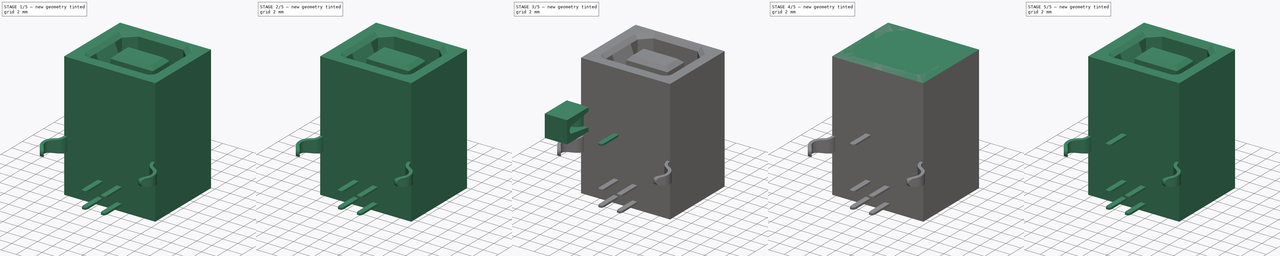
[diagram: build sequence overview — one tinted view per stage of 5, left to right]
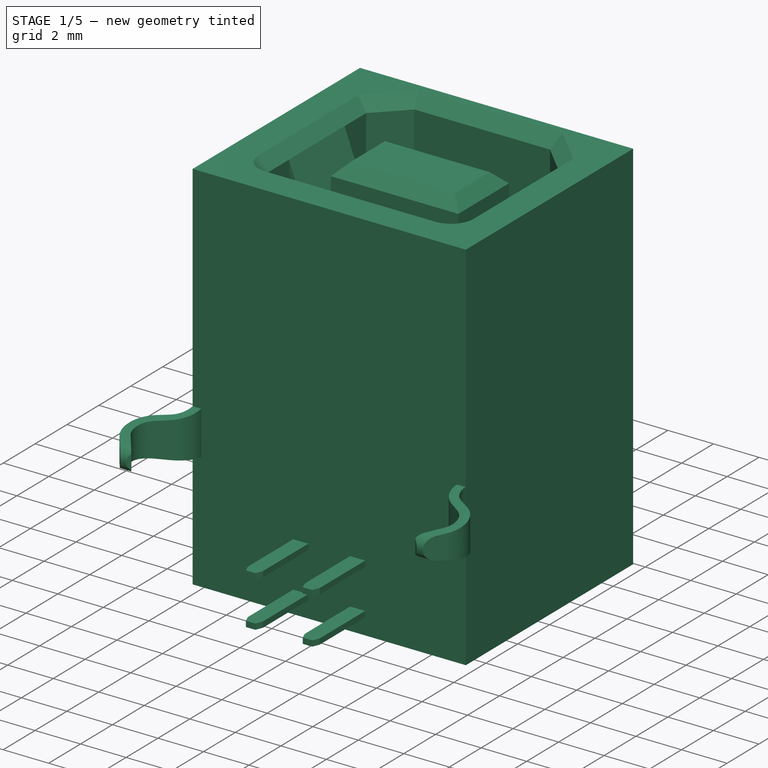
[diagram: stage 1 of 5 — iso view after this stage's code; geometry added in this stage tinted green]
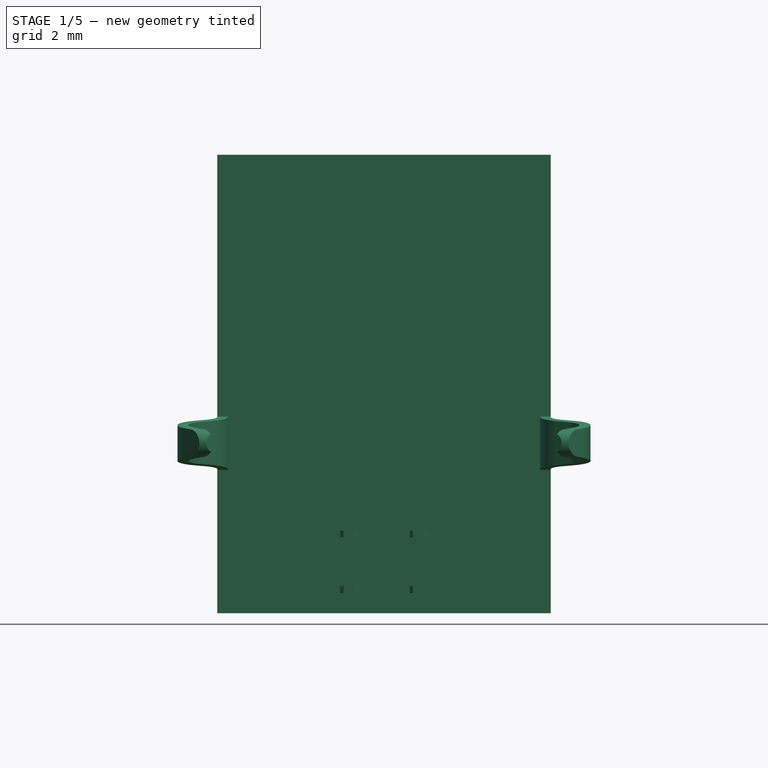
[diagram: stage 1 of 5 — front view after this stage's code; geometry added in this stage tinted green]
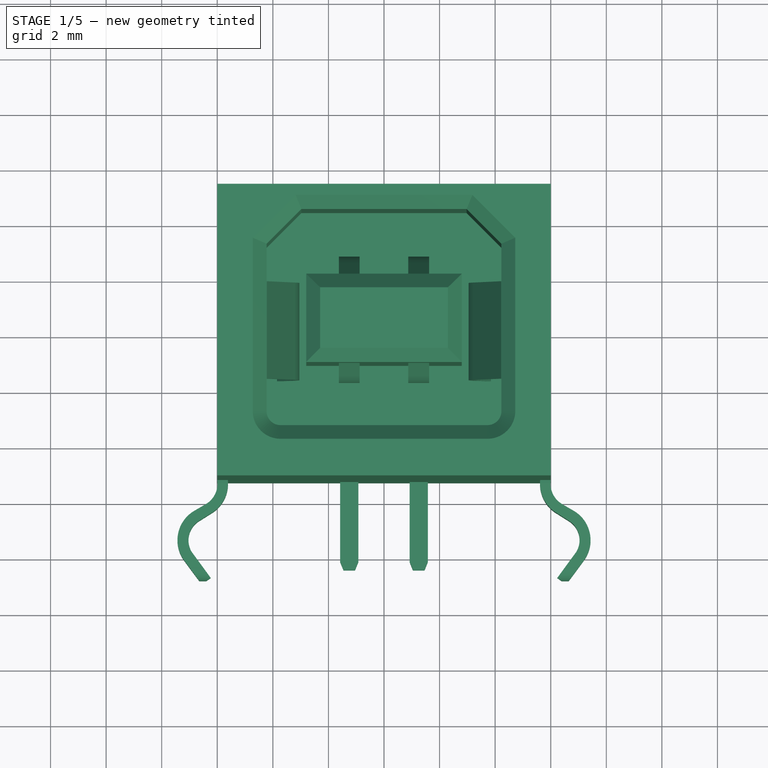
[diagram: stage 1 of 5 — top view after this stage's code; geometry added in this stage tinted green]
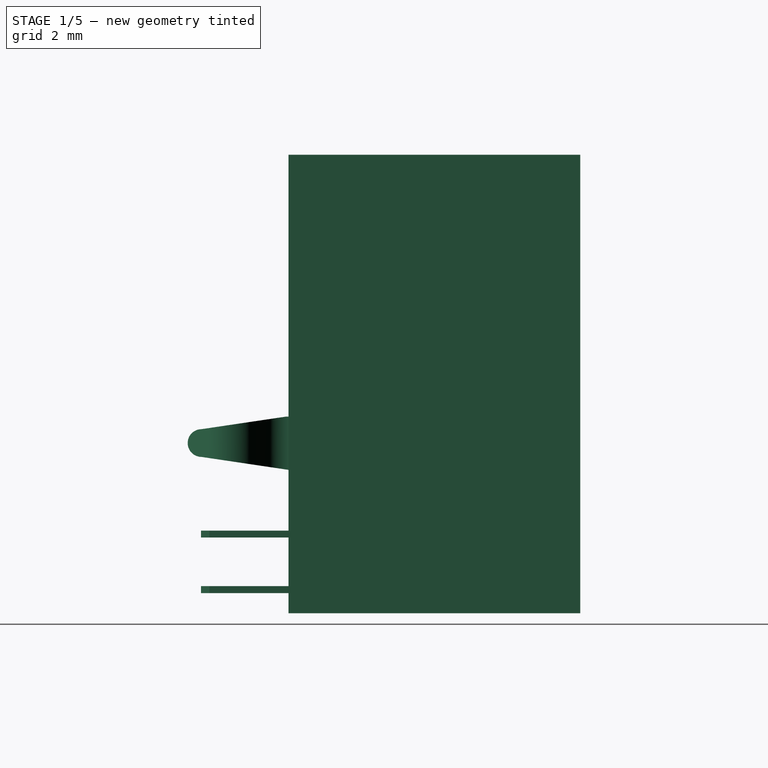
[diagram: stage 1 of 5 — right view after this stage's code; geometry added in this stage tinted green]
FCSTD DOCUMENT  (FreeCAD 0.14R3702 (Git))
Label: USB-2.0-type-B-jack-PCB
License: CC-BY 3.0
LicenseURL: http://creativecommons.org/licenses/by/3.0/
objects: Part::Feature×10, Sketcher::SketchObject×8, PartDesign::Pad×7, Part::MultiFuse×5, App::DocumentObjectGroup×4, Part::Mirroring×3, Part::Chamfer×2, PartDesign::Pocket×1, Part::Cut×1, Part::Compound×1
note: 46 computed .brp shape members not serialized (recipe doc carries the construction recipe); baked Part::Feature solids carry a one-line shape summary decoded from their .brp

FEATURE [Sketcher::SketchObject] Sketch003  label="side-contact-sketch-1"
  Placement = pos=(0,0,0) rot=(1,0,0;1.5708rad)
  sketch-geometry (11):
    g0: LineSegment StartX=-3.41283 StartY=5.03233 StartZ=0 EndX=-4.22 EndY=7.25 EndZ=0
    g1: LineSegment StartX=-4.22 StartY=7.25 StartZ=0 EndX=-4.22 EndY=7.75 EndZ=0
    g2: LineSegment StartX=-4.22 StartY=7.75 StartZ=0 EndX=-3.25214 EndY=5.09081 EndZ=0
    g3: LineSegment StartX=-3.54365 StartY=2.68643 StartZ=0 EndX=-3.85 EndY=1.98 EndZ=0
    g4: LineSegment StartX=-3.85 StartY=1.98 StartZ=0 EndX=-3.68486 EndY=1.90838 EndZ=0
    g5: LineSegment StartX=-3.68486 StartY=1.90838 StartZ=0 EndX=-3.38633 EndY=2.61821 EndZ=0
    g6: ArcOfCircle CenterX=-6 CenterY=4 CenterZ=0 NormalX=0 NormalY=0 NormalZ=1 Radius=2.78552 StartAngle=5.79212 EndAngle=6.66284
    g7: ArcOfCircle CenterX=-6 CenterY=4 CenterZ=0 NormalX=0 NormalY=0 NormalZ=1 Radius=2.95646 StartAngle=5.79686 EndAngle=6.66108
    g8: LineSegment [constr] StartX=-4.22 StartY=7.25 StartZ=0 EndX=-4.22 EndY=6.25 EndZ=0
    g9: LineSegment [constr] StartX=-3.41283 StartY=5.03233 StartZ=0 EndX=-3.25214 EndY=5.09081 EndZ=0
    g10: LineSegment [constr] StartX=-3.54365 StartY=2.68643 StartZ=0 EndX=-3.38633 EndY=2.61821 EndZ=0
  constraints (32):
    c: Coincident(g0,g1)
    c: Coincident(g1,g2)
    c: Coincident(g3,g4)
    c: Coincident(g4,g5)
    c: Coincident(g6,g0)
    c: Coincident(g6,g3)
    c: Coincident(g7,g5)
    c: Coincident(g7,g2)
    c: Vertical(g1)
    c: DistanceY(g1) = 0.5
    c: Vertical(g8)
    c: Coincident(g8,g0)
    c: DistanceY(g8) = -1
    c: Angle(g8,g0) = 0.349066
    c: Parallel(g0,g2)
    c: DistanceX(g-1,g1) = -4.22
    c: DistanceY(g-1,g1) = 7.75
    c: Coincident(g6,g7)
    c: DistanceX(g-1,g3) = -3.85
    c: DistanceY(g-1,g3) = 1.98
    c: Perpendicular(g3,g4)
    c: Distance(g4) = 0.18
    c: DistanceX(g-1,g6) = -6
    c: Coincident(g9,g0)
    c: Perpendicular(g9,g0)
    c: Distance(g0) = 2.36
    c: Coincident(g9,g2)
    c: Coincident(g10,g3)
    c: Perpendicular(g10,g3)
    c: Coincident(g10,g5)
    c: Distance(g3) = 0.77
    c: DistanceY(g-1,g6) = 4
FEATURE [PartDesign::Pad] Pad002  label="left-side-contact"
  Length = 3.5
  Length2 = 100
  Midplane = true
  Placement = pos=(0,0,0) rot=(1,0,0;1.5708rad)
  Sketch = -> Sketch003
  Type = 0
FEATURE [Part::Mirroring] Part__Mirroring  label="side-contacts"
  Base = (0,0,0)
  Normal = (1,0,0)
  Source = -> Pad002
FEATURE [App::DocumentObjectGroup] Group002  label="hooks-src"
  Group = -> [Part__Mirroring002,Fusion004]
FEATURE [Part::Feature] Fusion005  label="hooks-final"
  shape: bbox 14.87 x 3.63 x 1.915 mm, 28 faces, 2 solids (baked)
FEATURE [App::DocumentObjectGroup] Group003  label="pin-src"
  Group = -> [Pad006]
FEATURE [Part::MultiFuse] Fusion006  label="pins"
  Shapes = -> [Pad006001,Pad006002,Pad006004,Pad006003]
FEATURE [App::DocumentObjectGroup] Group001  label="contacts-src"
  Group = -> [Part__Mirroring,Fusion,Fusion001,Pad002,Fusion007,Fusion008]
FEATURE [Part::Feature] Fusion009  label="bottom-top-contact-final"
  shape: bbox 3.25 x 4.551 x 6.255 mm, 40 faces, 4 solids (baked)
FEATURE [Part::Feature] Fusion010  label="side-contacts-final"
  shape: bbox 8.44 x 3.5 x 5.842 mm, 20 faces, 2 solids (baked)
FEATURE [Part::Compound] Compound  label="USB-2.0-type-B-jack-PCB"
  Links = -> [Chamfer002,Fusion005,Fusion006,Fusion009,Fusion010]
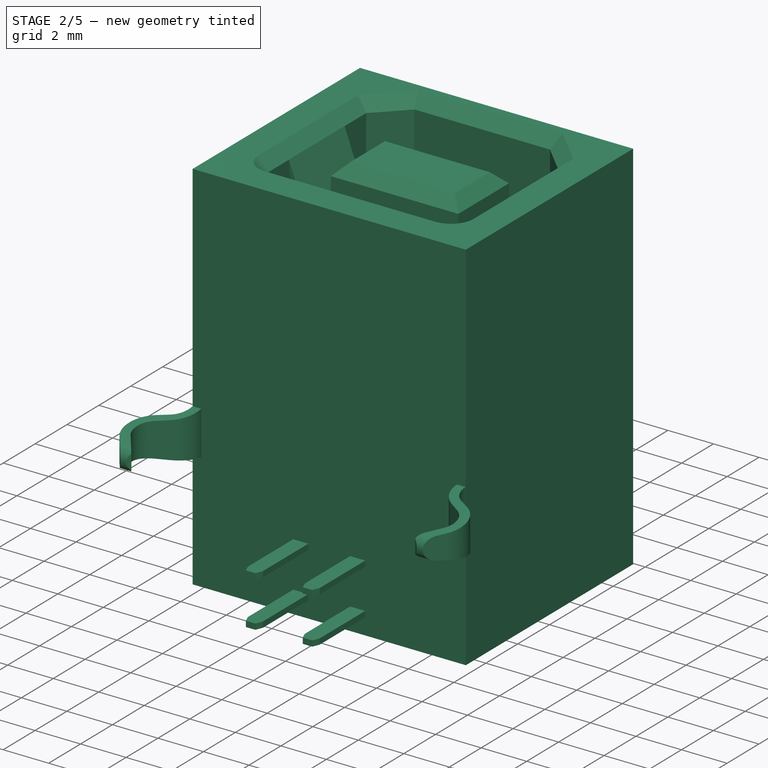
[diagram: stage 2 of 5 — iso view after this stage's code; geometry added in this stage tinted green]
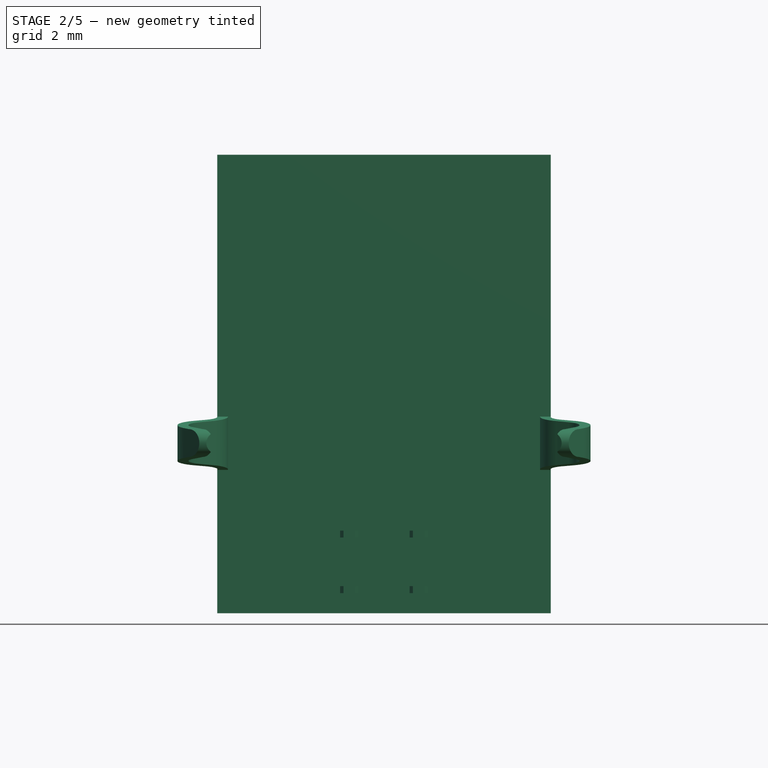
[diagram: stage 2 of 5 — front view after this stage's code; geometry added in this stage tinted green]
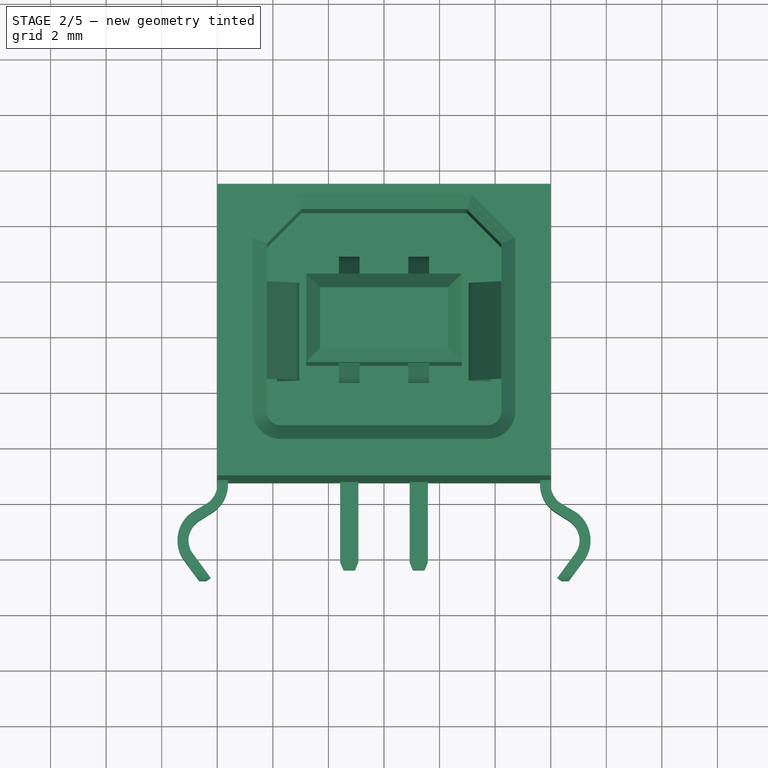
[diagram: stage 2 of 5 — top view after this stage's code; geometry added in this stage tinted green]
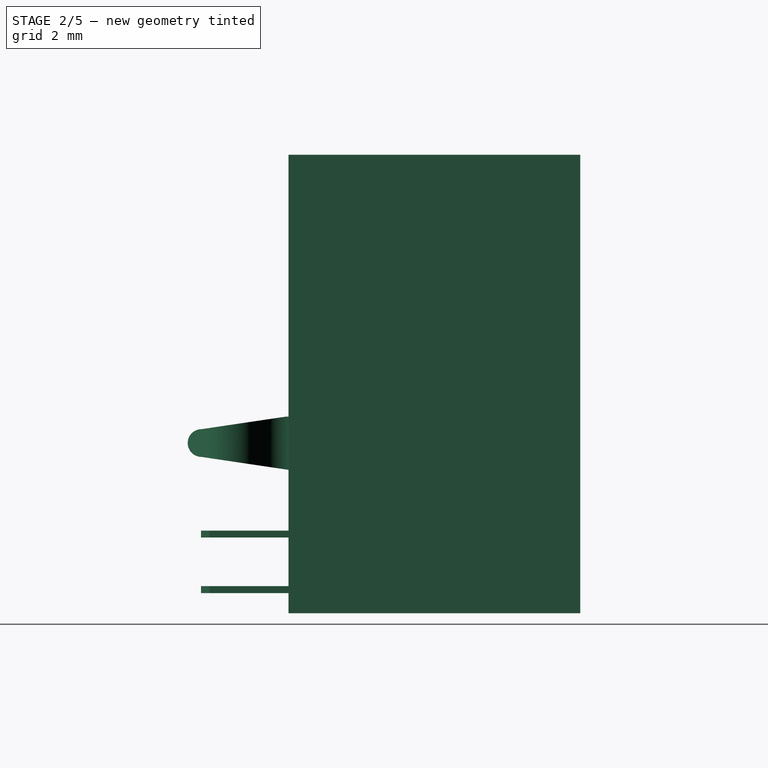
[diagram: stage 2 of 5 — right view after this stage's code; geometry added in this stage tinted green]
FEATURE [Sketcher::SketchObject] Sketch004  label="botom-contact-1-sketch"
  Placement = pos=(-1.25,0.006,0.0135325) rot=(0.57735,0.57735,0.57735;2.0944rad)
  sketch-geometry (12):
    g0: LineSegment StartX=-1.55815 StartY=2.41479 StartZ=0 EndX=-1.156 EndY=0.245 EndZ=0
    g1: LineSegment StartX=-1.156 StartY=0.245 StartZ=0 EndX=-1.156 EndY=-0.755 EndZ=0
    g2: LineSegment StartX=-1.156 StartY=-0.755 StartZ=0 EndX=-1.73733 EndY=2.38158 EndZ=0
    g3: LineSegment [constr] StartX=-1.73733 StartY=2.38158 StartZ=0 EndX=-1.55815 EndY=2.41479 EndZ=0
    g4: LineSegment StartX=-1.61706 StartY=4.4138 StartZ=0 EndX=-1.156 EndY=5.5 EndZ=0
    g5: LineSegment StartX=-1.156 StartY=5.5 StartZ=0 EndX=-1.156 EndY=5.08 EndZ=0
    g6: LineSegment StartX=-1.156 StartY=5.08 StartZ=0 EndX=-1.466 EndY=4.34968 EndZ=0
    g7: LineSegment [constr] StartX=-1.61706 StartY=4.4138 StartZ=0 EndX=-1.466 EndY=4.34968 EndZ=0
    g8: LineSegment [constr] StartX=-1.156 StartY=5.08 StartZ=0 EndX=-1.156 EndY=4.08 EndZ=0
    g9: ArcOfCircle CenterX=1.69903 CenterY=3.22931 CenterZ=0 NormalX=0 NormalY=0 NormalZ=1 Radius=3.35748 StartAngle=2.80137 EndAngle=3.38664
    g10: ArcOfCircle CenterX=1.5 CenterY=3.20966 CenterZ=0 NormalX=0 NormalY=0 NormalZ=1 Radius=3.34156 StartAngle=2.77295 EndAngle=3.39201
    g11: LineSegment [constr] StartX=1.69903 StartY=3.22931 StartZ=0 EndX=1.5 EndY=3.20966 EndZ=0
  constraints (35):
    c: Coincident(g0,g1)
    c: Coincident(g1,g2)
    c: Vertical(g1)
    c: DistanceY(g1) = -1
    c: Angle(g-2,g2) = 0.18326
    c: Parallel(g2,g0)
    c: DistanceX(g-1,g1) = -1.156
    c: DistanceY(g-1,g1) = -0.755
    c: Coincident(g3,g2)
    c: Coincident(g3,g0)
    c: Perpendicular(g3,g2)
    c: Coincident(g4,g5)
    c: Coincident(g5,g6)
    c: Vertical(g5)
    c: PointOnObject(g5,g1)
    c: DistanceY(g5) = -0.42
    c: Coincident(g7,g4)
    c: Coincident(g7,g6)
    c: Perpendicular(g7,g4)
    c: Parallel(g4,g6)
    c: DistanceY(g-1,g4) = 5.5
    c: Vertical(g8)
    c: Coincident(g8,g5)
    c: DistanceY(g8) = -1
    c: Angle(g6,g8) = 0.401426
    c: Coincident(g9,g0)
    c: Coincident(g9,g6)
    c: Distance(g4) = 1.18
    c: Distance(g2) = 3.19
    c: Coincident(g10,g2)
    c: Coincident(g10,g4)
    c: Coincident(g11,g10)
    c: Coincident(g11,g9)
    c: Distance(g11) = 0.2
    c: DistanceX(g10) = 1.5
FEATURE [PartDesign::Pad] Pad003  label="bottom-contact1"
  Length = 0.75
  Length2 = 100
  Midplane = true
  Placement = pos=(-1.25,0.006,0.0135325) rot=(0.57735,0.57735,0.57735;2.0944rad)
  Sketch = -> Sketch004
  Type = 0
FEATURE [Part::Mirroring] Part__Mirroring001  label="bottom-contact-2"
  Base = (0,0,0)
  Normal = (1,0,0)
  Source = -> Pad003
FEATURE [Part::MultiFuse] Fusion  label="Botom-contacts"
  Shapes = -> [Part__Mirroring001,Pad003]
FEATURE [Part::MultiFuse] Fusion008  label="side-contacts001"
  Shapes = -> [Part__Mirroring,Pad002]
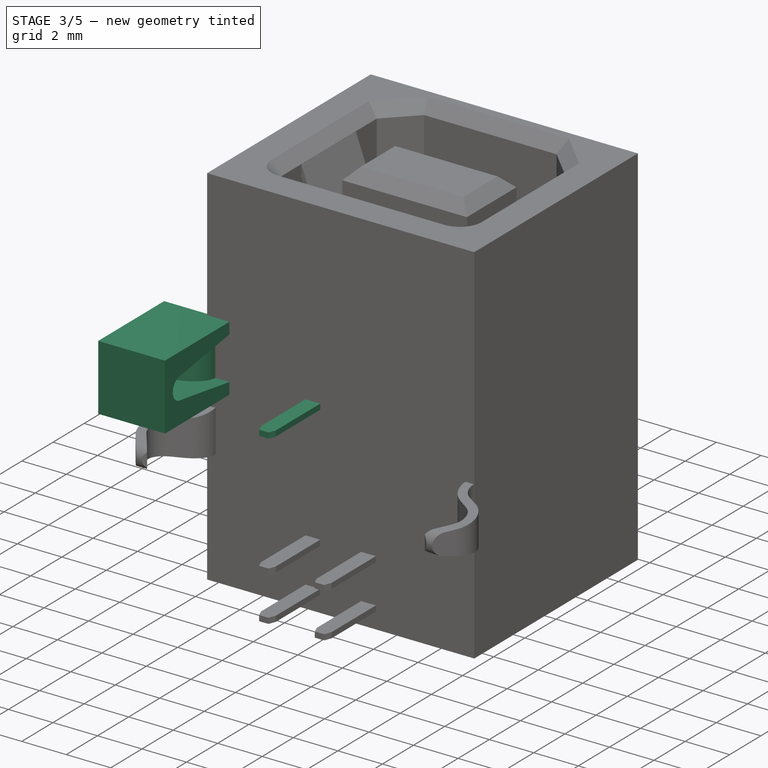
[diagram: stage 3 of 5 — iso view after this stage's code; geometry added in this stage tinted green]
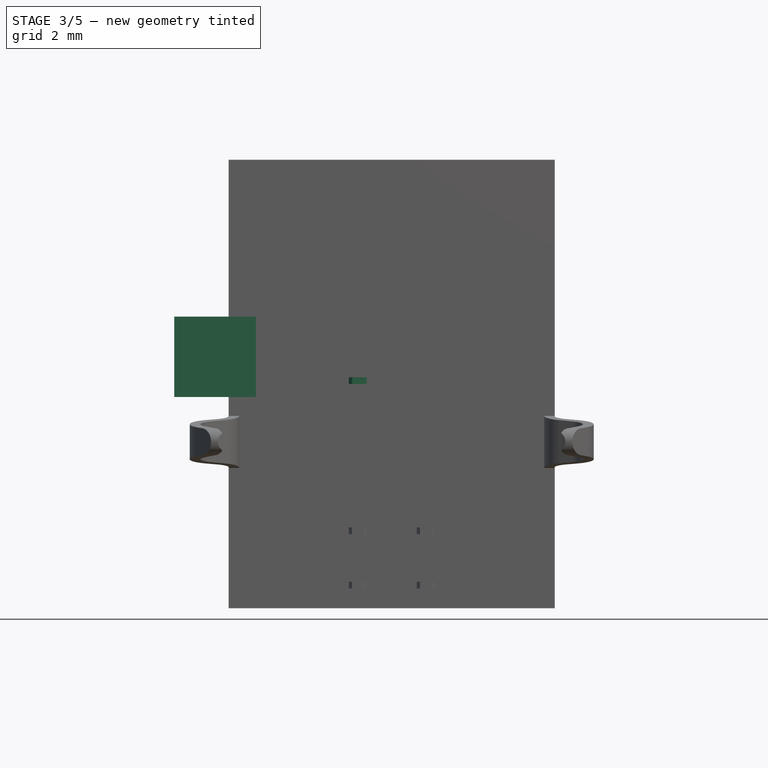
[diagram: stage 3 of 5 — front view after this stage's code; geometry added in this stage tinted green]
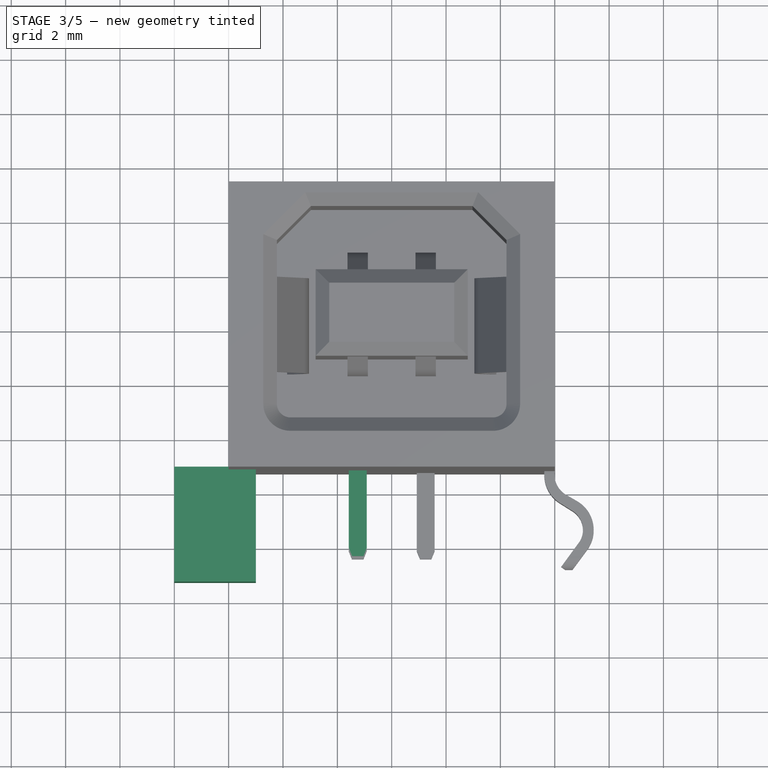
[diagram: stage 3 of 5 — top view after this stage's code; geometry added in this stage tinted green]
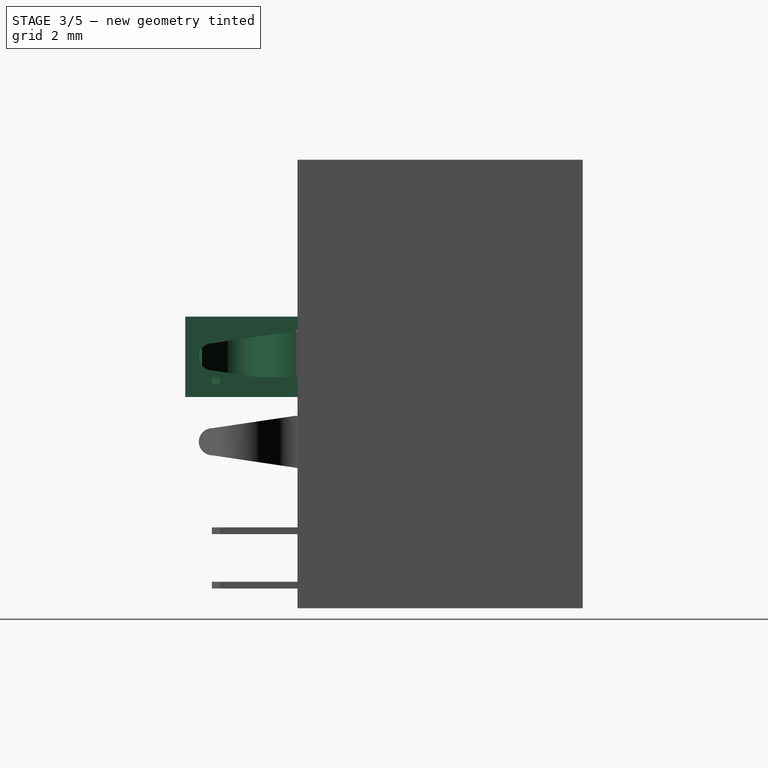
[diagram: stage 3 of 5 — right view after this stage's code; geometry added in this stage tinted green]
FEATURE [Part::Feature] Fusion001  label="Botom-contacts001"
  Placement = pos=(0,0.88,0) rot=(0,0,1;3.14159rad)
  shape: bbox 3.25 x 0.6856 x 6.255 mm, 20 faces, 2 solids (baked)
FEATURE [Sketcher::SketchObject] Sketch005  label="left-hook-main-sketch"
  sketch-geometry (12):
    g0: LineSegment StartX=-6 StartY=-5.25 StartZ=0 EndX=-5.62 EndY=-5.25 EndZ=0
    g1: ArcOfCircle CenterX=-6.85 CenterY=-5.37603 CenterZ=0 NormalX=0 NormalY=0 NormalZ=1 Radius=0.859293 StartAngle=5.23646 EndAngle=6.43039
    g2: ArcOfCircle CenterX=-6.21412 CenterY=-7.40896 CenterZ=0 NormalX=0 NormalY=0 NormalZ=1 Radius=1.21899 StartAngle=2.09487 EndAngle=3.77451
    g3: LineSegment StartX=-6.82412 StartY=-6.35357 StartZ=0 EndX=-6.42 EndY=-6.12 EndZ=0
    g4: LineSegment StartX=-7.197 StartY=-8.13 StartZ=0 EndX=-6.55818 EndY=-9.00081 EndZ=0
    g5: LineSegment StartX=-6.55818 StartY=-9.00081 StartZ=0 EndX=-6.23566 EndY=-8.76421 EndZ=0
    g6: LineSegment StartX=-6.23566 StartY=-8.76421 StartZ=0 EndX=-6.92416 EndY=-7.82567 EndZ=0
    g7: ArcOfCircle CenterX=-6.21412 CenterY=-7.40896 CenterZ=0 NormalX=0 NormalY=0 NormalZ=1 Radius=0.823291 StartAngle=2.09487 EndAngle=3.67231
    g8: LineSegment [constr] StartX=-6.82412 StartY=-6.35357 StartZ=0 EndX=-6.62611 EndY=-6.69617 EndZ=0
    g9: ArcOfCircle CenterX=-6.85 CenterY=-5.37603 CenterZ=0 NormalX=0 NormalY=0 NormalZ=1 Radius=1.23644 StartAngle=5.23646 EndAngle=6.3853
    g10: LineSegment [constr] StartX=-6.42 StartY=-6.12 StartZ=0 EndX=-6.23127 EndY=-6.44653 EndZ=0
    g11: LineSegment StartX=-6.62611 StartY=-6.69617 StartZ=0 EndX=-6.23127 EndY=-6.44653 EndZ=0
  constraints (36):
    c: Horizontal(g0)
    c: DistanceX(g0) = 0.38
    c: DistanceX(g-1,g0) = -6
    c: DistanceY(g-1,g0) = -5.25
    c: Coincident(g1,g0)
    c: DistanceX(g1,g0) = 0.42
    c: DistanceY(g1,g0) = 0.87
    c: DistanceX(g0,g1) = -0.85
    c: Coincident(g1,g3)
    c: Coincident(g3,g2)
    c: Tangent(g2,g3)
    c: Tangent(g3,g1)
    c: DistanceX(g2,g2) = 0.61
    c: DistanceY(g2,g0) = 2.88
    c: DistanceX(g2,g0) = 1.577
    c: Coincident(g4,g2)
    c: Tangent(g4,g2)
    c: Distance(g4) = 1.08
    c: Coincident(g5,g4)
    c: Perpendicular(g5,g4)
    c: Distance(g5) = 0.4
    c: Coincident(g6,g5)
    c: Parallel(g6,g4)
    c: Coincident(g7,g6)
    c: Coincident(g7,g2)
    c: Distance(g6) = 1.164
    c: Coincident(g8,g2)
    c: Perpendicular(g8,g3)
    c: Coincident(g8,g7)
    c: Coincident(g9,g0)
    c: Coincident(g9,g1)
    c: Coincident(g10,g1)
    c: Coincident(g10,g9)
    c: Perpendicular(g10,g3)
    c: Coincident(g11,g7)
    c: Coincident(g11,g9)
FEATURE [PartDesign::Pad] Pad004  label="left-hook-main"
  Length = 1.95
  Length2 = 100
  Sketch = -> Sketch005
  Type = 0
FEATURE [Sketcher::SketchObject] Sketch006  label="hook-transform-sketch"
  Placement = pos=(-6.5,0.09,3.15) rot=(0.57735,0.57735,0.57735;2.0944rad)
  sketch-geometry (10):
    g0: LineSegment StartX=-5.24 StartY=-1.17 StartZ=0 EndX=-8.47 EndY=-1.65 EndZ=0
    g1: ArcOfCircle CenterX=-8.47 CenterY=-2.15 CenterZ=0 NormalX=0 NormalY=0 NormalZ=1 Radius=0.5 StartAngle=1.5708 EndAngle=4.71239
    g2: LineSegment [constr] StartX=-8.47 StartY=-1.65 StartZ=0 EndX=-8.47 EndY=-2.65 EndZ=0
    g3: LineSegment [constr] StartX=-8.47 StartY=-2.15 StartZ=0 EndX=-5.24 EndY=-2.15 EndZ=0
    g4: LineSegment StartX=-8.47 StartY=-2.65 StartZ=0 EndX=-5.24 EndY=-3.13 EndZ=0
    g5: LineSegment StartX=-5.24 StartY=-1.17 StartZ=0 EndX=-5.24 EndY=-0.67 EndZ=0
    g6: LineSegment StartX=-5.24 StartY=-0.67 StartZ=0 EndX=-9.47 EndY=-0.67 EndZ=0
    g7: LineSegment StartX=-9.47 StartY=-0.67 StartZ=0 EndX=-9.47 EndY=-3.63 EndZ=0
    g8: LineSegment StartX=-9.47 StartY=-3.63 StartZ=0 EndX=-5.24 EndY=-3.63 EndZ=0
    g9: LineSegment StartX=-5.24 StartY=-3.63 StartZ=0 EndX=-5.24 EndY=-3.13 EndZ=0
  constraints (29):
    c: Coincident(g1,g0)
    c: Vertical(g2)
    c: Coincident(g2,g0)
    c: PointOnObject(g1,g2)
    c: Coincident(g2,g1)
    c: Radius(g1) = 0.5
    c: DistanceX(g-1,g0) = -5.24
    c: DistanceY(g-1,g0) = -1.17
    c: DistanceX(g0,g0) = 3.23
    c: DistanceY(g0,g0) = 0.48
    c: Horizontal(g3)
    c: Coincident(g3,g1)
    c: Coincident(g4,g1)
    c: Symmetric(g4,g0,g3)
    c: Coincident(g5,g6)
    c: Coincident(g6,g7)
    c: Coincident(g7,g8)
    c: Coincident(g8,g9)
    c: Vertical(g5)
    c: Coincident(g5,g0)
    c: PointOnObject(g3,g5)
    c: Horizontal(g6)
    c: DistanceY(g5,g0) = -0.5
    c: Vertical(g7)
    c: Symmetric(g6,g7,g3)
    c: Horizontal(g8)
    c: Coincident(g9,g4)
    c: Vertical(g9)
    c: DistanceX(g1,g6) = -1
FEATURE [PartDesign::Pad] Pad005  label="hook-transform"
  Length = 3
  Length2 = 100
  Midplane = true
  Placement = pos=(-6.5,0.09,3.15) rot=(0.57735,0.57735,0.57735;2.0944rad)
  Sketch = -> Sketch006
  Type = 0
FEATURE [Sketcher::SketchObject] Sketch007  label="pin-sketch"
  sketch-geometry (8):
    g0: LineSegment StartX=-1.57878 StartY=-5.25 StartZ=0 EndX=-0.918776 EndY=-5.25 EndZ=0
    g1: LineSegment StartX=-0.918776 StartY=-5.25 StartZ=0 EndX=-0.918776 EndY=-8.1 EndZ=0
    g2: LineSegment [constr] StartX=-0.918776 StartY=-8.1 StartZ=0 EndX=-1.57878 EndY=-8.1 EndZ=0
    g3: LineSegment StartX=-1.57878 StartY=-8.1 StartZ=0 EndX=-1.57878 EndY=-5.25 EndZ=0
    g4: LineSegment StartX=-1.57878 StartY=-8.1 StartZ=0 EndX=-1.45767 EndY=-8.39974 EndZ=0
    g5: LineSegment StartX=-1.45767 StartY=-8.39974 StartZ=0 EndX=-1.03988 EndY=-8.39974 EndZ=0
    g6: LineSegment StartX=-1.03988 StartY=-8.39974 StartZ=0 EndX=-0.918776 EndY=-8.1 EndZ=0
    g7: LineSegment [constr] StartX=-1.24878 StartY=-7.9 StartZ=0 EndX=-1.24878 EndY=-8.3 EndZ=0
  constraints (22):
    c: Coincident(g0,g1)
    c: Coincident(g1,g2)
    c: Coincident(g2,g3)
    c: Coincident(g3,g0)
    c: Horizontal(g0)
    c: Horizontal(g2)
    c: Vertical(g1)
    c: Vertical(g3)
    c: DistanceY(g-1,g0) = -5.25
    c: DistanceX(g0) = 0.66
    c: DistanceY(g1) = -2.85
    c: Coincident(g4,g5)
    c: Coincident(g5,g6)
    c: Horizontal(g5)
    c: Coincident(g4,g2)
    c: Angle(g4,g2) = 1.18682
    c: Coincident(g6,g1)
    c: Vertical(g7)
    c: Symmetric(g7,g7,g2)
    c: DistanceY(g7) = -0.4
    c: Symmetric(g4,g5,g7)
    c: Symmetric(g2,g1,g7)
FEATURE [PartDesign::Pad] Pad006  label="pin-master"
  Length = 0.25
  Length2 = 100
  Sketch = -> Sketch007
  Type = 0
FEATURE [Part::MultiFuse] Fusion007  label="bottom-top-contacts"
  Shapes = -> [Fusion,Fusion001]
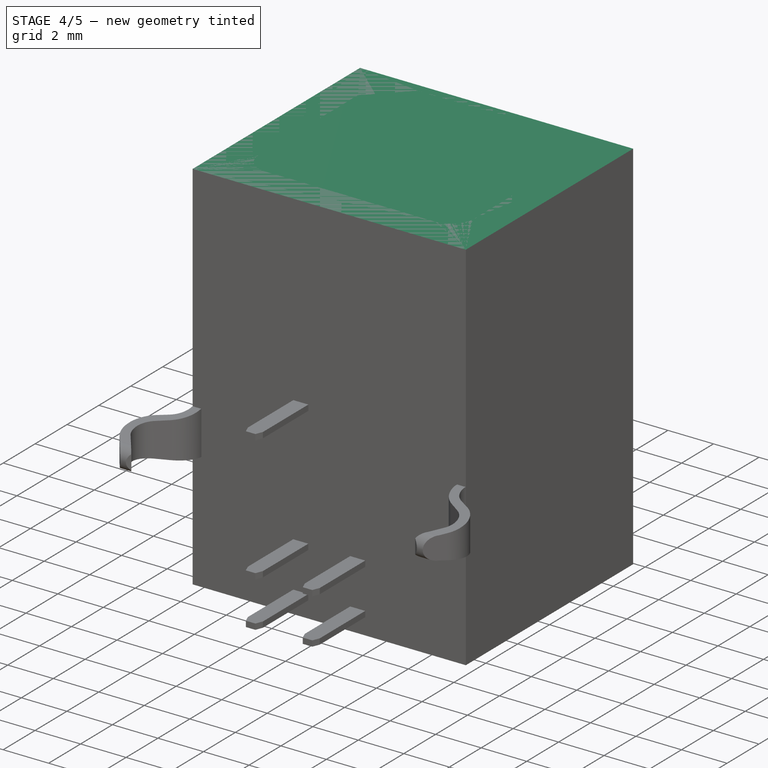
[diagram: stage 4 of 5 — iso view after this stage's code; geometry added in this stage tinted green]
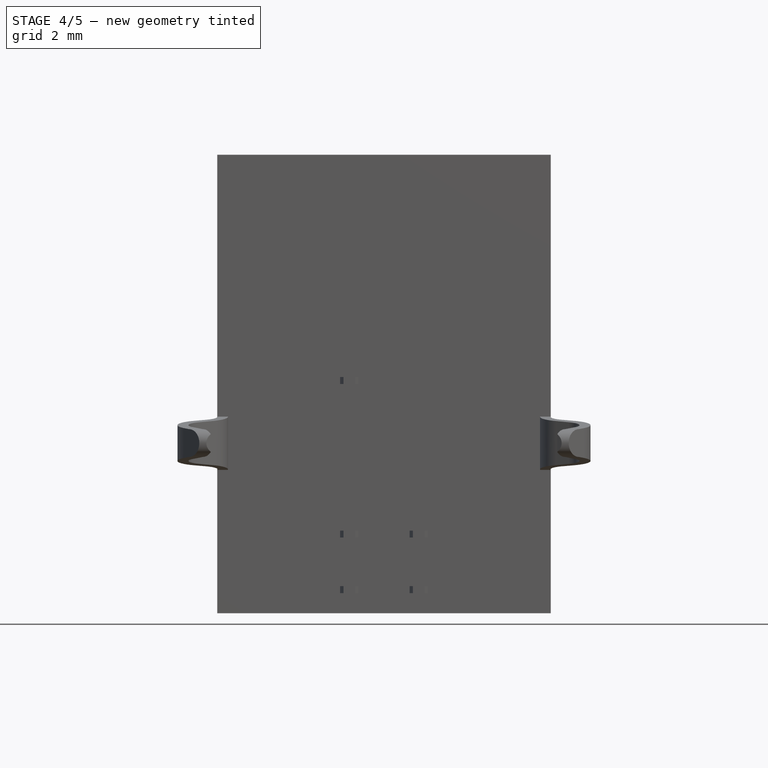
[diagram: stage 4 of 5 — front view after this stage's code; geometry added in this stage tinted green]
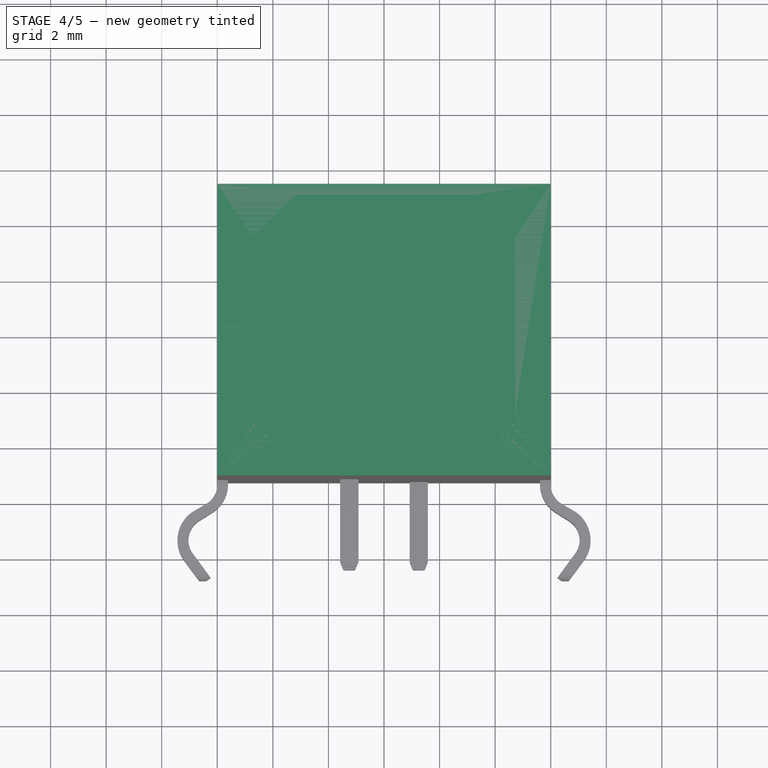
[diagram: stage 4 of 5 — top view after this stage's code; geometry added in this stage tinted green]
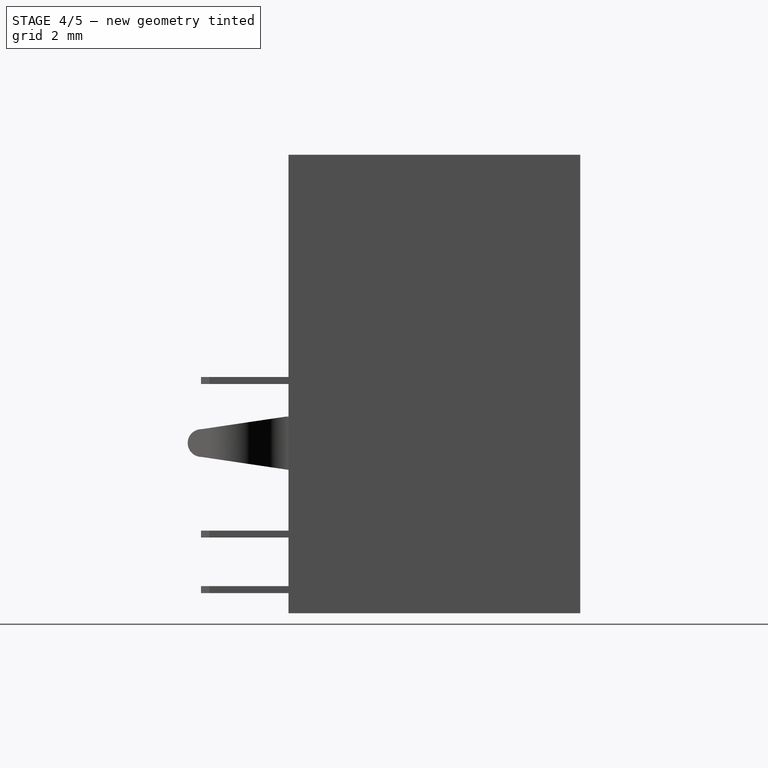
[diagram: stage 4 of 5 — right view after this stage's code; geometry added in this stage tinted green]
FEATURE [Part::Feature] Part__Feature  label="USB-connector"
  shape: bbox 14.87 x 14.22 x 16.5 mm, 138 faces (baked)
FEATURE [Sketcher::SketchObject] Sketch  label="main-body-sketch"
  sketch-geometry (4):
    g0: LineSegment StartX=-6 StartY=5.25 StartZ=0 EndX=6 EndY=5.25 EndZ=0
    g1: LineSegment StartX=6 StartY=5.25 StartZ=0 EndX=6 EndY=-5.25 EndZ=0
    g2: LineSegment StartX=6 StartY=-5.25 StartZ=0 EndX=-6 EndY=-5.25 EndZ=0
    g3: LineSegment StartX=-6 StartY=-5.25 StartZ=0 EndX=-6 EndY=5.25 EndZ=0
  constraints (11):
    c: Coincident(g0,g1)
    c: Coincident(g1,g2)
    c: Coincident(g2,g3)
    c: Coincident(g3,g0)
    c: Horizontal(g0)
    c: Horizontal(g2)
    c: Vertical(g1)
    c: Vertical(g3)
    c: DistanceX(g0) = 12
    c: DistanceY(g3) = 10.5
    c: Symmetric(g0,g1,g-1)
FEATURE [PartDesign::Pad] Pad  label="main-body"
  Length = 16.5
  Length2 = 100
  Midplane = true
  Sketch = -> Sketch
  Type = 0
FEATURE [Part::Cut] Cut  label="left-hook"
  Base = -> Pad004
  Placement = pos=(0,0,-3.125) rot=(0,0,1;0rad)
  Tool = -> Pad005
FEATURE [Part::Mirroring] Part__Mirroring002  label="right-hook"
  Base = (0,0,0)
  Normal = (1,0,0)
  Source = -> Cut
FEATURE [Part::Feature] Pad006001  label="pin-1"
  Placement = pos=(-0.00122409,0,-7.525) rot=(0,0,1;0rad)
  shape: bbox 0.66 x 3.15 x 0.25 mm, 8 faces (baked)
FEATURE [Part::Feature] Pad006002  label="pin-002"
  Placement = pos=(-0.00122409,0,-5.525) rot=(0,0,1;0rad)
  shape: bbox 0.66 x 3.15 x 0.25 mm, 8 faces (baked)
FEATURE [Part::Feature] Pad006003  label="pin-003"
  Placement = pos=(2.49878,0,-7.525) rot=(0,0,1;0rad)
  shape: bbox 0.66 x 3.15 x 0.25 mm, 8 faces (baked)
FEATURE [Part::Feature] Pad006004  label="pin-004"
  Placement = pos=(2.49878,0,-5.525) rot=(0,0,1;0rad)
  shape: bbox 0.66 x 3.15 x 0.25 mm, 8 faces (baked)
FEATURE [App::DocumentObjectGroup] Group  label="body-src"
  Group = -> [Pad,Pocket,Chamfer001]
FEATURE [Part::Feature] Chamfer002  label="body-final"
  shape: bbox 12 x 10.5 x 16.5 mm, 32 faces (baked)
FEATURE [Part::MultiFuse] Fusion004  label="hooks"
  Shapes = -> [Part__Mirroring002,Cut]
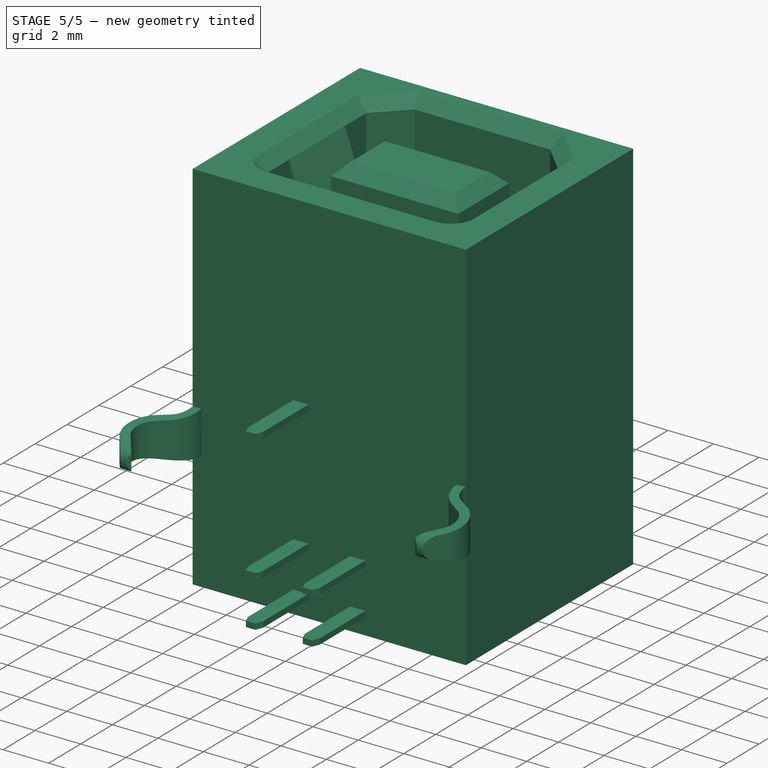
[diagram: stage 5 of 5 — iso view after this stage's code; geometry added in this stage tinted green]
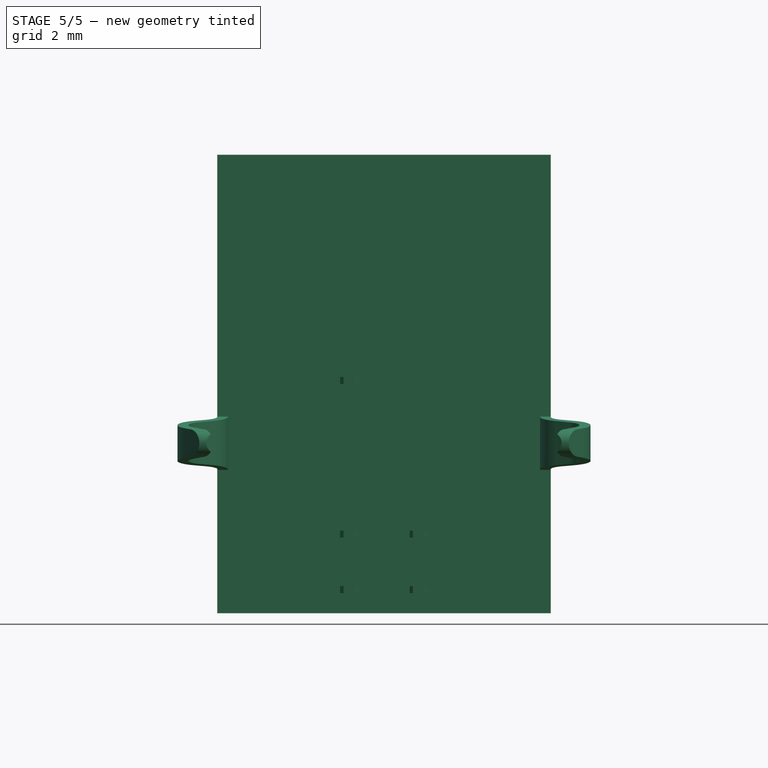
[diagram: stage 5 of 5 — front view after this stage's code; geometry added in this stage tinted green]
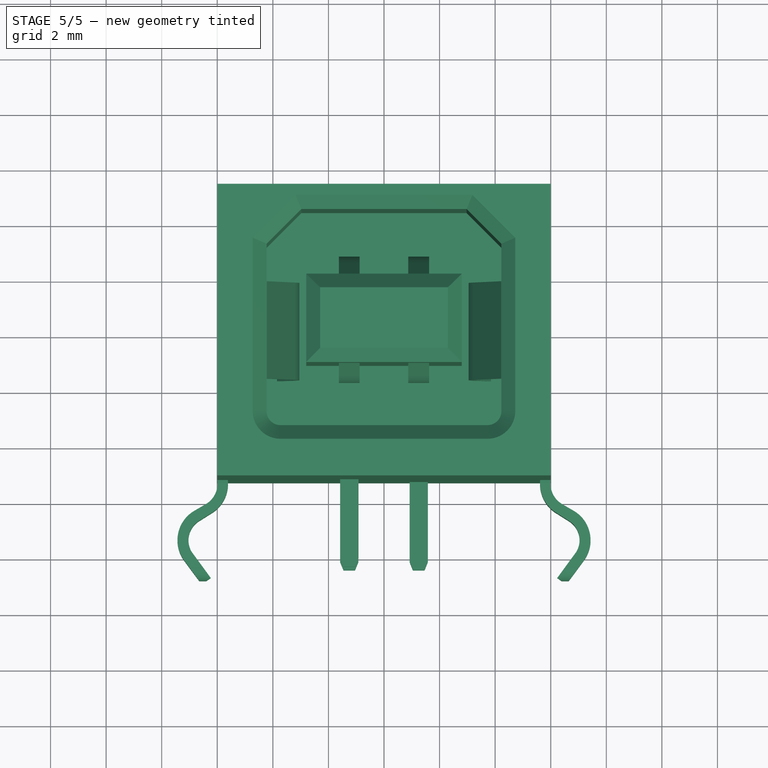
[diagram: stage 5 of 5 — top view after this stage's code; geometry added in this stage tinted green]
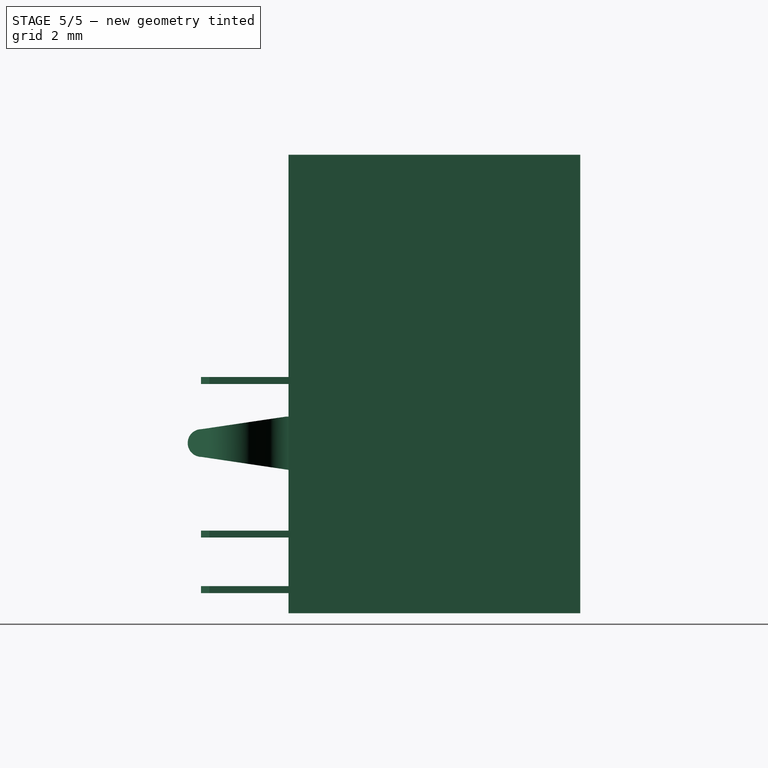
[diagram: stage 5 of 5 — right view after this stage's code; geometry added in this stage tinted green]
FEATURE [Sketcher::SketchObject] Sketch001  label="cutout-1-sketch"
  Placement = pos=(0,0,8.25) rot=(0,0,1;0rad)
  Support = -> Pad [Face6]
  sketch-geometry (9):
    g0: LineSegment StartX=-4.225 StartY=-2.93 StartZ=0 EndX=-4.225 EndY=3.1 EndZ=0
    g1: LineSegment StartX=-4.225 StartY=3.1 StartZ=0 EndX=-2.975 EndY=4.35 EndZ=0
    g2: LineSegment StartX=-2.975 StartY=4.35 StartZ=0 EndX=2.975 EndY=4.35 EndZ=0
    g3: LineSegment StartX=2.975 StartY=4.35 StartZ=0 EndX=4.225 EndY=3.1 EndZ=0
    g4: LineSegment StartX=4.225 StartY=3.1 StartZ=0 EndX=4.225 EndY=-2.93 EndZ=0
    g5: LineSegment StartX=3.725 StartY=-3.43 StartZ=0 EndX=-3.725 EndY=-3.43 EndZ=0
    g6: ArcOfCircle CenterX=-3.725 CenterY=-2.93 CenterZ=0 NormalX=0 NormalY=0 NormalZ=1 Radius=0.5 StartAngle=3.14159 EndAngle=4.71239
    g7: ArcOfCircle CenterX=3.725 CenterY=-2.93 CenterZ=0 NormalX=0 NormalY=0 NormalZ=1 Radius=0.5 StartAngle=4.71239 EndAngle=6.28319
    g8: LineSegment [constr] StartX=-4.225 StartY=3.1 StartZ=0 EndX=4.225 EndY=3.1 EndZ=0
  constraints (23):
    c: Coincident(g0,g1)
    c: Coincident(g1,g2)
    c: Coincident(g2,g3)
    c: Coincident(g3,g4)
    c: Horizontal(g2)
    c: Horizontal(g5)
    c: Vertical(g4)
    c: Tangent(g0,g6)
    c: Tangent(g5,g6)
    c: Tangent(g4,g7)
    c: Tangent(g5,g7)
    c: Symmetric(g1,g2,g-2)
    c: Symmetric(g0,g3,g-2)
    c: Symmetric(g6,g7,g-2)
    c: Horizontal(g8)
    c: Coincident(g8,g0)
    c: Coincident(g8,g3)
    c: Angle(g8,g1) = 0.785398
    c: Radius(g6) = 0.5
    c: DistanceY(g0,g0) = 6.03
    c: DistanceX(g1,g2) = 5.95
    c: DistanceX(g0,g3) = 8.45
    c: DistanceY(g-1,g3) = 3.1
FEATURE [PartDesign::Pocket] Pocket  label="cutout-1"
  Length = 9
  Sketch = -> Sketch001
  Type = 0
FEATURE [Sketcher::SketchObject] Sketch002  label="jack-sketch"
  Placement = pos=(0,0,-0.75) rot=(0,0,1;0rad)
  Support = -> Pocket [Face15]
  sketch-geometry (4):
    g0: LineSegment StartX=-2.8 StartY=2.03 StartZ=0 EndX=2.8 EndY=2.03 EndZ=0
    g1: LineSegment StartX=2.8 StartY=2.03 StartZ=0 EndX=2.8 EndY=-1.15 EndZ=0
    g2: LineSegment StartX=2.8 StartY=-1.15 StartZ=0 EndX=-2.8 EndY=-1.15 EndZ=0
    g3: LineSegment StartX=-2.8 StartY=-1.15 StartZ=0 EndX=-2.8 EndY=2.03 EndZ=0
  constraints (12):
    c: Coincident(g0,g1)
    c: Coincident(g1,g2)
    c: Coincident(g2,g3)
    c: Coincident(g3,g0)
    c: Horizontal(g0)
    c: Horizontal(g2)
    c: Vertical(g1)
    c: Vertical(g3)
    c: Symmetric(g0,g0,g-2)
    c: DistanceX(g0) = 5.6
    c: DistanceY(g3) = 3.18
    c: DistanceY(g-1,g1) = -1.15
FEATURE [PartDesign::Pad] Pad001  label="jack"
  Length = 8.5
  Length2 = 100
  Sketch = -> Sketch002
  Type = 0
FEATURE [Part::Chamfer] Chamfer  label="jack-chamfer"
  Base = -> Pad001
  Edges = 4 edges r=0.5: [Edge42,Edge45,Edge47,Edge48]
FEATURE [Part::Chamfer] Chamfer001  label="body-chamfer"
  Base = -> Chamfer
  Edges = 8 edges r=0.5: [Edge30,Edge32,Edge35,Edge37,Edge38,Edge41,Edge42,Edge44]
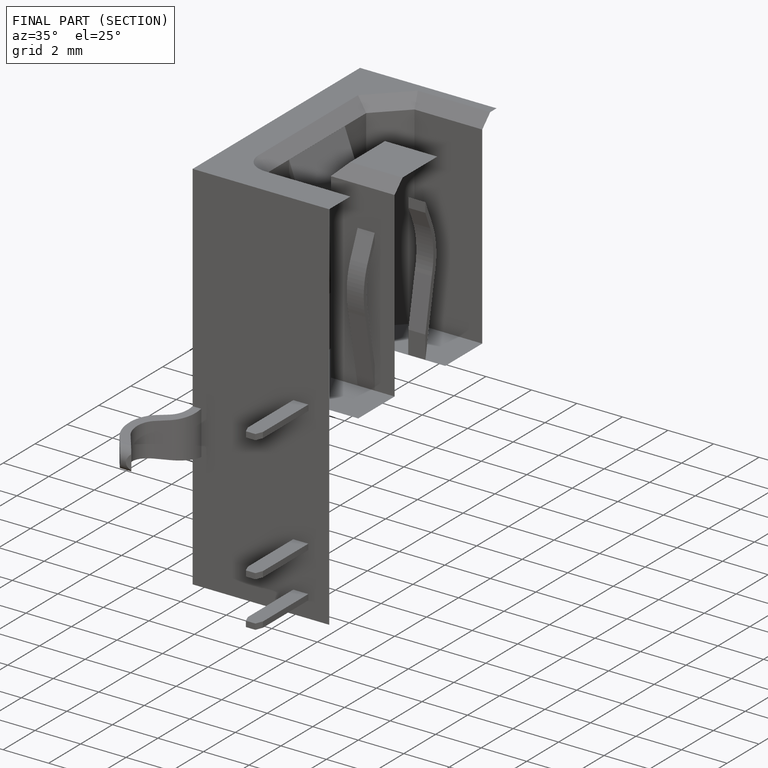
[diagram: finished part — half-section view (interior)]
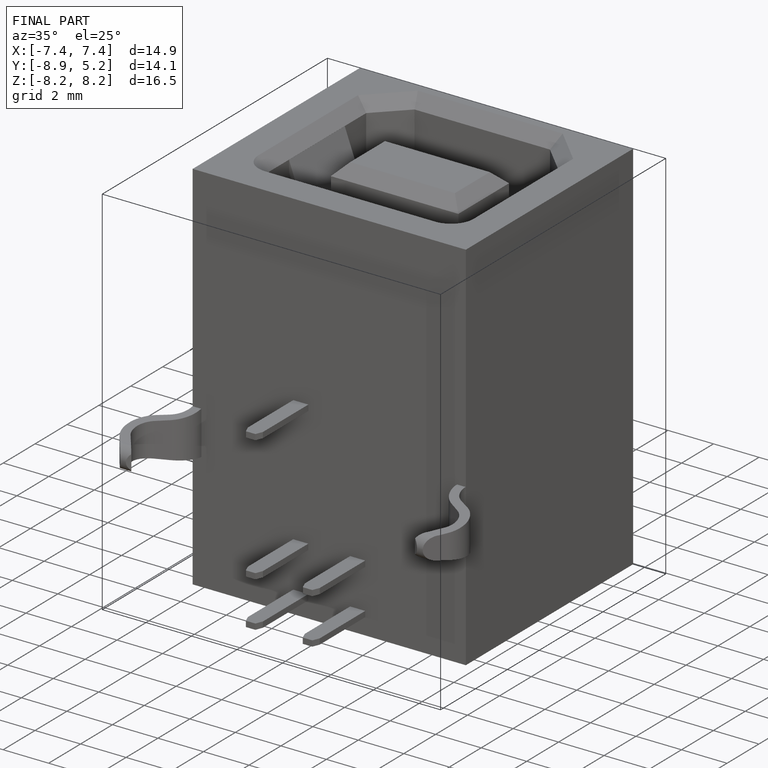
[diagram: finished part — iso view with bounding-box wireframe]
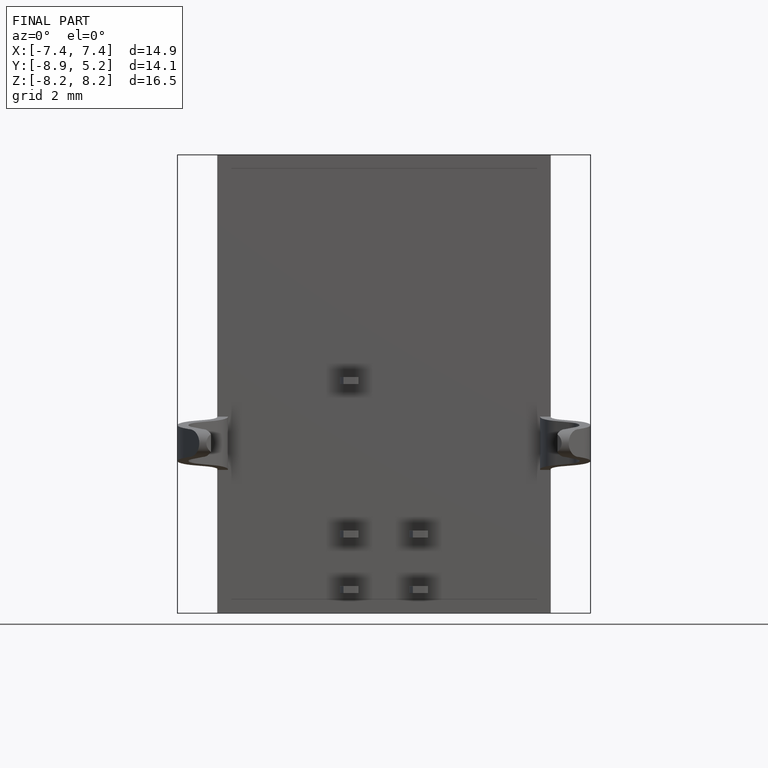
[diagram: finished part — front view with bounding-box wireframe]
